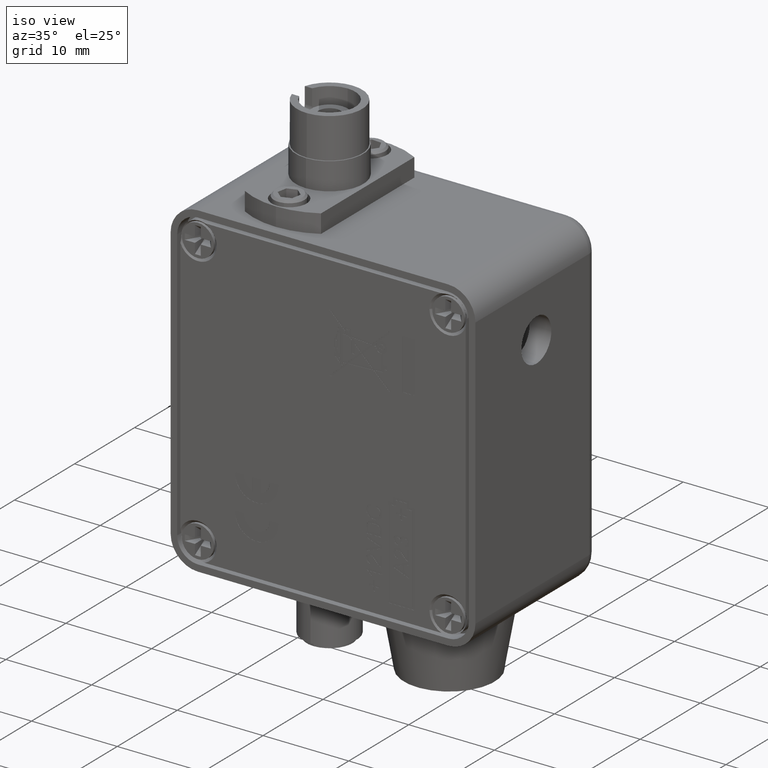
[diagram: clean part render]
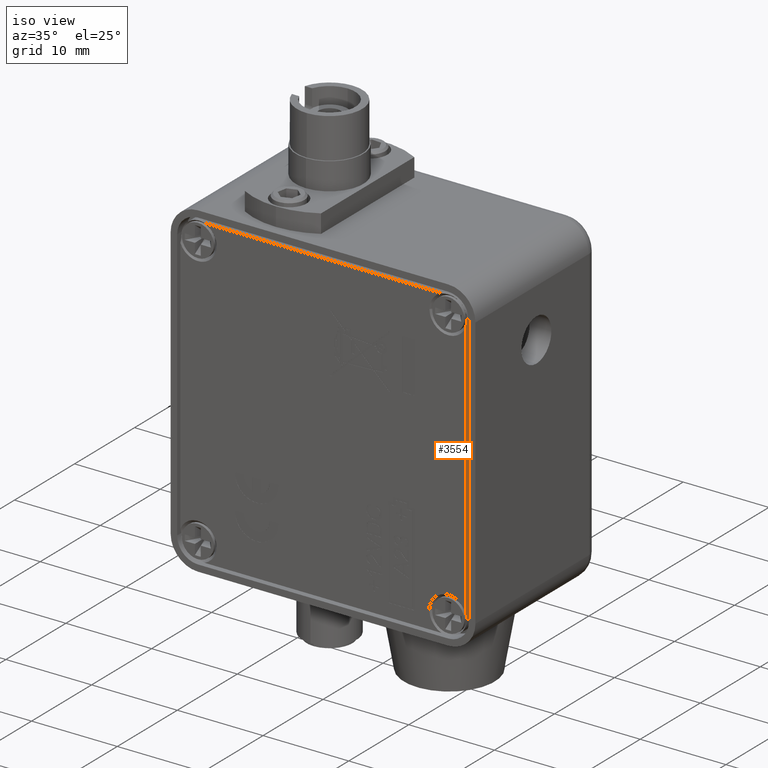
[diagram: same view with one face highlighted and labeled with its STEP entity id]
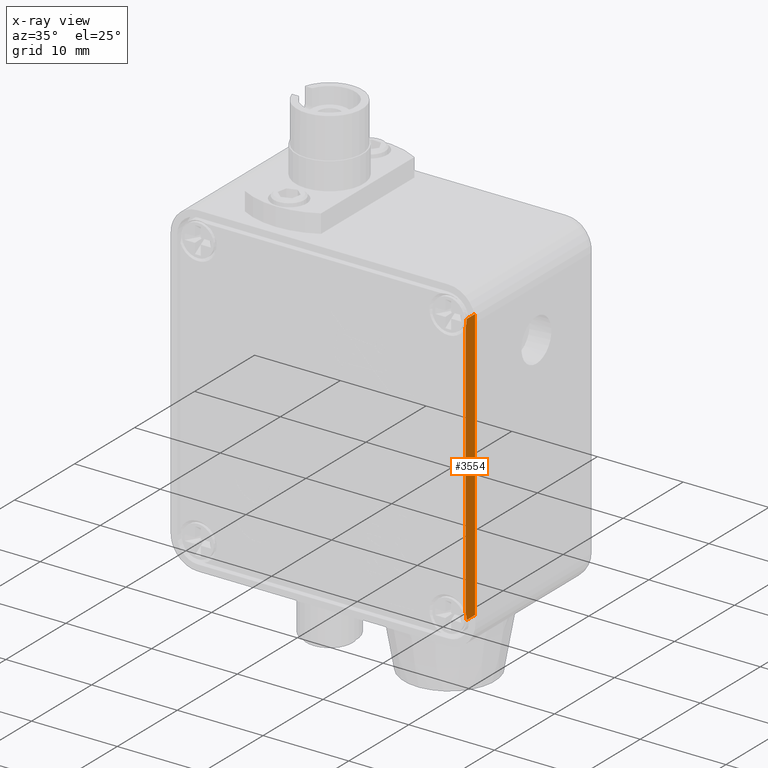
[diagram: x-ray of the same camera — body ghosted, the highlighted face saturated]
A machine part, iso view. The second image highlights one B-rep face of the part: STEP entity #3554.
The next image is the same camera in x-ray: the body ghosted, the highlighted face saturated — about 0% of this face is hidden behind the body in this view.
In plain terms, the highlighted planar face has unit normal (-1, 0, -0).
Its self-contained STEP definition (entity closure, byte-faithful):
#3554 = ADVANCED_FACE ( 'NONE', ( #54094 ), #52957, .F. ) ;
#8145 = ORIENTED_EDGE ( 'NONE', *, *, #89210, .F. ) ;
#8146 = ORIENTED_EDGE ( 'NONE', *, *, #80829, .T. ) ;
#8147 = ORIENTED_EDGE ( 'NONE', *, *, #80830, .T. ) ;
#8148 = ORIENTED_EDGE ( 'NONE', *, *, #80831, .T. ) ;
#8149 = ORIENTED_EDGE ( 'NONE', *, *, #80832, .T. ) ;
#8150 = ORIENTED_EDGE ( 'NONE', *, *, #88933, .T. ) ;
#27327 = CARTESIAN_POINT ( 'NONE',  ( 0.5934405323238817200, 0.06250000000000006900, 6.829619984160658000E-017 ) ) ;
#27329 = CARTESIAN_POINT ( 'NONE',  ( -0.5934405323238816100, 0.06250000000000006900, 6.829619984160658000E-017 ) ) ;
#27380 = CARTESIAN_POINT ( 'NONE',  ( 0.6250000000000001100, 0.05559778955667402100, 0.0000000000000000000 ) ) ;
#27403 = CARTESIAN_POINT ( 'NONE',  ( -0.6250000000000000000, 0.05559778955667402100, -1.536664496436148200E-016 ) ) ;
#27481 = CARTESIAN_POINT ( 'NONE',  ( -0.6250000000000001100, 0.0000000000000000000, 0.0000000000000000000 ) ) ;
#27528 = CARTESIAN_POINT ( 'NONE',  ( 0.6250000000000001100, 0.0000000000000000000, 0.0000000000000000000 ) ) ;
#35692 = LINE ( 'NONE', #40505, #35699 ) ;
#35696 = LINE ( 'NONE', #40511, #35701 ) ;
#35699 = VECTOR ( 'NONE', #40510, 39.37007874015748100 ) ;
#35700 = LINE ( 'NONE', #40513, #35703 ) ;
#35701 = VECTOR ( 'NONE', #40512, 39.37007874015748100 ) ;
#35703 = VECTOR ( 'NONE', #40514, 39.37007874015748100 ) ;
#40483 = CARTESIAN_POINT ( 'NONE',  ( -0.5984453536531471100, 0.06038720800876936500, 0.0000000000000000000 ) ) ;
#40499 = CARTESIAN_POINT ( 'NONE',  ( -0.5934405323238816100, 0.06250000000000006900, 6.829619984160658000E-017 ) ) ;
#40505 = CARTESIAN_POINT ( 'NONE',  ( -0.6250000000000001100, 0.06250000000000000000, 0.0000000000000000000 ) ) ;
#40506 = CARTESIAN_POINT ( 'NONE',  ( -0.6036003028748766500, 0.05864692494501990600, -0.0000000000000000000 ) ) ;
#40507 = CARTESIAN_POINT ( 'NONE',  ( -0.6141679181484605000, 0.05624621233426838100, -0.0000000000000000000 ) ) ;
#40508 = CARTESIAN_POINT ( 'NONE',  ( -0.6196226738688559400, 0.05559778955667418800, 0.0000000000000000000 ) ) ;
#40509 = CARTESIAN_POINT ( 'NONE',  ( -0.6250000000000000000, 0.05559778955667402100, -1.536664496436148200E-016 ) ) ;
#40510 = DIRECTION ( 'NONE',  ( 0.0000000000000000000, -1.000000000000000000, 0.0000000000000000000 ) ) ;
#40511 = CARTESIAN_POINT ( 'NONE',  ( -0.7050000000000001800, 0.0000000000000000000, 0.0000000000000000000 ) ) ;
#40512 = DIRECTION ( 'NONE',  ( 1.000000000000000000, 0.0000000000000000000, 0.0000000000000000000 ) ) ;
#40513 = CARTESIAN_POINT ( 'NONE',  ( 0.6250000000000001100, 0.06250000000000000000, 0.0000000000000000000 ) ) ;
#40514 = DIRECTION ( 'NONE',  ( -0.0000000000000000000, 1.000000000000000000, -0.0000000000000000000 ) ) ;
#41875 = B_SPLINE_CURVE_WITH_KNOTS ( 'NONE', 3,
 ( #65088, #65089, #65094, #65095 ),
 .UNSPECIFIED., .F., .F.,
 ( 4, 4 ),
 ( 0.001653439609071386500, 0.002473485565997537600 ),
 .UNSPECIFIED. ) ;
#50473 = AXIS2_PLACEMENT_3D ( 'NONE', #52958, #52963, #52964 ) ;
#52957 = PLANE ( 'NONE',  #50473 ) ;
#52958 = CARTESIAN_POINT ( 'NONE',  ( -0.7050000000000001800, 0.06250000000000000000, 0.0000000000000000000 ) ) ;
#52963 = DIRECTION ( 'NONE',  ( 0.0000000000000000000, 0.0000000000000000000, -1.000000000000000000 ) ) ;
#52964 = DIRECTION ( 'NONE',  ( -1.000000000000000000, 0.0000000000000000000, -0.0000000000000000000 ) ) ;
#54094 = FACE_OUTER_BOUND ( 'NONE', #84324, .T. ) ;
#63769 = LINE ( 'NONE', #66061, #63773 ) ;
#63773 = VECTOR ( 'NONE', #66064, 39.37007874015748100 ) ;
#65088 = CARTESIAN_POINT ( 'NONE',  ( 0.6250000000000001100, 0.05559778955667402100, 0.0000000000000000000 ) ) ;
#65089 = CARTESIAN_POINT ( 'NONE',  ( 0.6141300152071449400, 0.05559778955667361900, 0.0000000000000000000 ) ) ;
#65094 = CARTESIAN_POINT ( 'NONE',  ( 0.6034252218252254000, 0.05828495002608131300, 0.0000000000000000000 ) ) ;
#65095 = CARTESIAN_POINT ( 'NONE',  ( 0.5934405323238817200, 0.06250000000000006900, 6.829619984160658000E-017 ) ) ;
#66061 = CARTESIAN_POINT ( 'NONE',  ( -0.7050000000000001800, 0.06250000000000000000, 0.0000000000000000000 ) ) ;
#66064 = DIRECTION ( 'NONE',  ( 1.000000000000000000, 0.0000000000000000000, 0.0000000000000000000 ) ) ;
#77786 = B_SPLINE_CURVE_WITH_KNOTS ( 'NONE', 3,
 ( #40499, #40483, #40506, #40507, #40508, #40509 ),
 .UNSPECIFIED., .F., .F.,
 ( 4, 2, 4 ),
 ( 0.001839430988350158000, 0.002245554992536181100, 0.002651678996722204100 ),
 .UNSPECIFIED. ) ;
#79346 = VERTEX_POINT ( 'NONE', #27327 ) ;
#79348 = VERTEX_POINT ( 'NONE', #27329 ) ;
#79399 = VERTEX_POINT ( 'NONE', #27380 ) ;
#79422 = VERTEX_POINT ( 'NONE', #27403 ) ;
#79500 = VERTEX_POINT ( 'NONE', #27481 ) ;
#79547 = VERTEX_POINT ( 'NONE', #27528 ) ;
#80829 = EDGE_CURVE ( 'NONE', #79348, #79422, #77786, .T. ) ;
#80830 = EDGE_CURVE ( 'NONE', #79422, #79500, #35692, .T. ) ;
#80831 = EDGE_CURVE ( 'NONE', #79500, #79547, #35696, .T. ) ;
#80832 = EDGE_CURVE ( 'NONE', #79547, #79399, #35700, .T. ) ;
#84324 = EDGE_LOOP ( 'NONE', ( #8145, #8146, #8147, #8148, #8149, #8150 ) ) ;
#88933 = EDGE_CURVE ( 'NONE', #79399, #79346, #41875, .T. ) ;
#89210 = EDGE_CURVE ( 'NONE', #79348, #79346, #63769, .T. ) ;